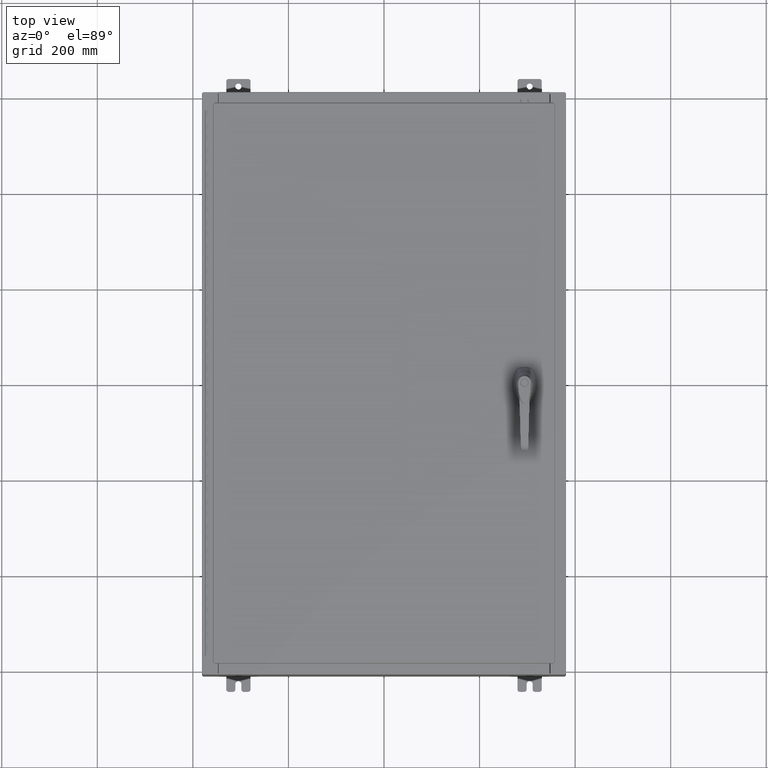
[diagram: clean part render]
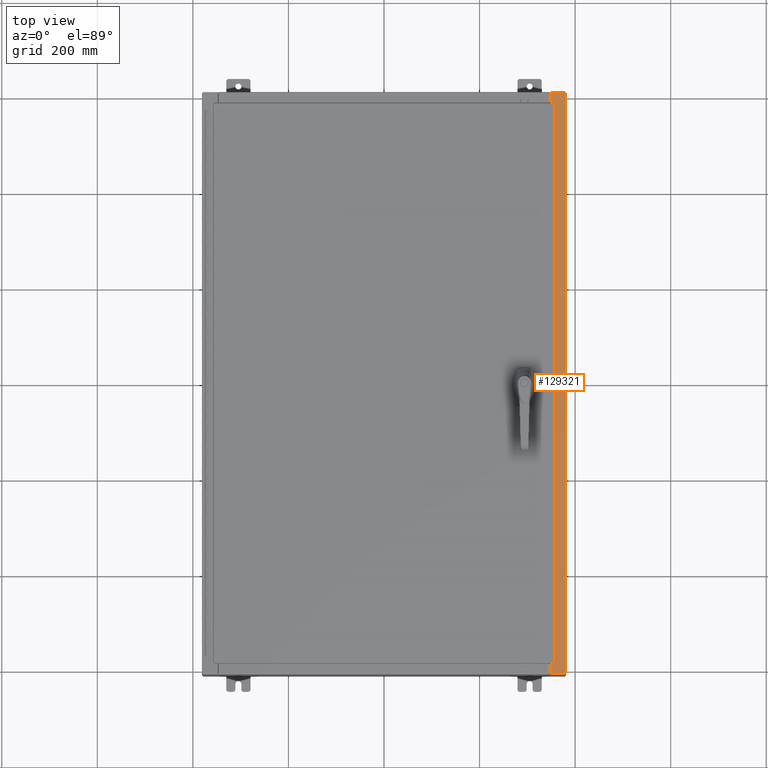
[diagram: same view with one face highlighted and labeled with its STEP entity id]
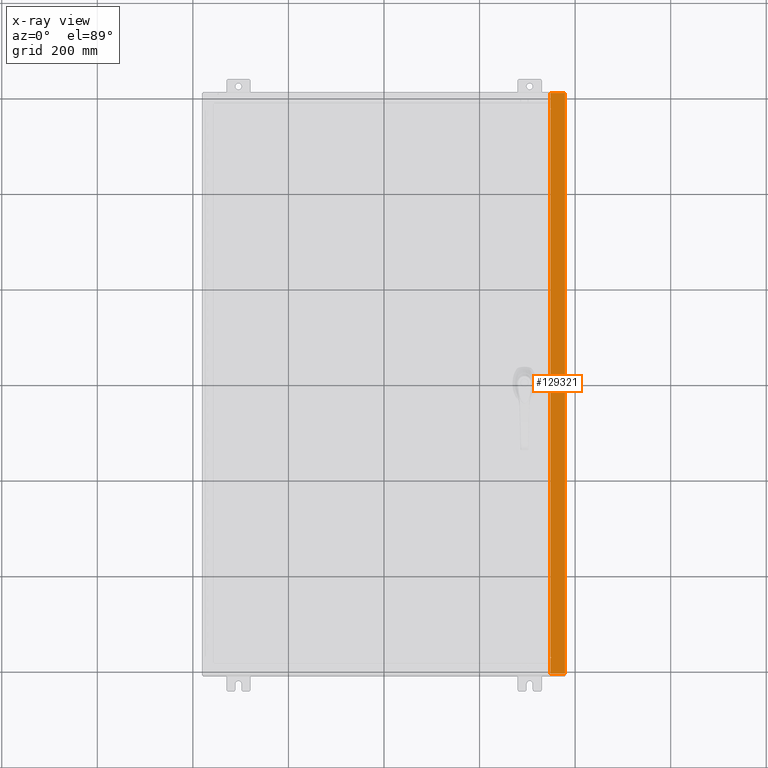
[diagram: x-ray of the same camera — body ghosted, the highlighted face saturated]
A machine part, top view. The second image highlights one B-rep face of the part: STEP entity #129321.
The next image is the same camera in x-ray: the body ghosted, the highlighted face saturated — about 0% of this face is hidden behind the body in this view.
In plain terms, the highlighted planar face has unit normal (-0, 0, -1).
Its self-contained STEP definition (entity closure, byte-faithful):
#602 = VECTOR ( 'NONE', #29961, 39.37007874015748100 ) ;
#3205 = VERTEX_POINT ( 'NONE', #62371 ) ;
#3903 = CARTESIAN_POINT ( 'NONE',  ( 13.69970000000003400, -23.92529999999998200, 9.925300000000008900 ) ) ;
#4327 = DIRECTION ( 'NONE',  ( -1.000000000000000000, 0.0000000000000000000, 0.0000000000000000000 ) ) ;
#6364 = LINE ( 'NONE', #125747, #112496 ) ;
#7592 = VECTOR ( 'NONE', #121141, 39.37007874015748100 ) ;
#12420 = VERTEX_POINT ( 'NONE', #90972 ) ;
#14178 = CARTESIAN_POINT ( 'NONE',  ( 13.75005000000003500, -22.59374999999997900, 9.925300000000008900 ) ) ;
#14941 = DIRECTION ( 'NONE',  ( 5.349571789159788500E-015, 0.0000000000000000000, 1.000000000000000000 ) ) ;
#18238 = VERTEX_POINT ( 'NONE', #102517 ) ;
#19664 = EDGE_CURVE ( 'NONE', #123557, #12420, #93837, .T. ) ;
#22049 = CIRCLE ( 'NONE', #86532, 0.01867499999999949400 ) ;
#27147 = CARTESIAN_POINT ( 'NONE',  ( 13.69970000000003400, 22.63109999999997900, 9.925300000000008900 ) ) ;
#27309 = EDGE_CURVE ( 'NONE', #99720, #18238, #94938, .T. ) ;
#27866 = LINE ( 'NONE', #81189, #602 ) ;
#28695 = CARTESIAN_POINT ( 'NONE',  ( 13.69970000000003400, -22.63109999999997900, 9.925300000000008900 ) ) ;
#29961 = DIRECTION ( 'NONE',  ( -3.203758888773075000E-031, -1.000000000000000000, 1.713873817065035400E-045 ) ) ;
#30421 = CIRCLE ( 'NONE', #104758, 0.01867499999999949400 ) ;
#32546 = CARTESIAN_POINT ( 'NONE',  ( 13.69970000000003400, -22.63109999999997900, 9.925300000000008900 ) ) ;
#34923 = VERTEX_POINT ( 'NONE', #65635 ) ;
#36590 = ORIENTED_EDGE ( 'NONE', *, *, #124923, .F. ) ;
#38585 = PLANE ( 'NONE',  #65596 ) ;
#38807 = CARTESIAN_POINT ( 'NONE',  ( 13.71270000000003700, -22.59374999999997900, 9.925300000000008900 ) ) ;
#40376 = VECTOR ( 'NONE', #66462, 39.37007874015748100 ) ;
#42363 = CARTESIAN_POINT ( 'NONE',  ( 13.71270000000003700, 22.59374999999997900, 9.925300000000008900 ) ) ;
#45837 = EDGE_CURVE ( 'NONE', #99720, #104962, #27866, .T. ) ;
#46636 = VECTOR ( 'NONE', #104489, 39.37007874015748100 ) ;
#48907 = DIRECTION ( 'NONE',  ( -1.000000000000000000, 0.0000000000000000000, 5.349571789159788500E-015 ) ) ;
#49759 = EDGE_CURVE ( 'NONE', #85869, #34923, #30421, .T. ) ;
#49954 = FACE_OUTER_BOUND ( 'NONE', #75545, .T. ) ;
#50435 = LINE ( 'NONE', #14178, #126143 ) ;
#53161 = DIRECTION ( 'NONE',  ( 1.000000000000000000, 0.0000000000000000000, 0.0000000000000000000 ) ) ;
#53702 = EDGE_CURVE ( 'NONE', #132790, #3205, #62110, .T. ) ;
#53708 = DIRECTION ( 'NONE',  ( -1.000000000000000000, 0.0000000000000000000, 0.0000000000000000000 ) ) ;
#56122 = CARTESIAN_POINT ( 'NONE',  ( 14.91230000000003400, -23.92529999999998200, 9.925300000000001800 ) ) ;
#57204 = EDGE_CURVE ( 'NONE', #82409, #132790, #50435, .T. ) ;
#58835 = DIRECTION ( 'NONE',  ( 5.349571789159788500E-015, 0.0000000000000000000, 1.000000000000000000 ) ) ;
#59100 = VECTOR ( 'NONE', #79800, 39.37007874015748100 ) ;
#60897 = VECTOR ( 'NONE', #124748, 39.37007874015748100 ) ;
#62098 = CARTESIAN_POINT ( 'NONE',  ( 13.71270000000003700, -22.59374999999997900, 9.925300000000008900 ) ) ;
#62110 = LINE ( 'NONE', #38807, #7592 ) ;
#62371 = CARTESIAN_POINT ( 'NONE',  ( 13.71270000000003700, 22.59374999999997900, 9.925300000000008900 ) ) ;
#64104 = LINE ( 'NONE', #114385, #60897 ) ;
#65596 = AXIS2_PLACEMENT_3D ( 'NONE', #120468, #110557, #48907 ) ;
#65635 = CARTESIAN_POINT ( 'NONE',  ( 13.75005000000003500, 22.63109999999997900, 9.925300000000008900 ) ) ;
#66462 = DIRECTION ( 'NONE',  ( -0.0000000000000000000, -1.000000000000000000, -0.0000000000000000000 ) ) ;
#70198 = ORIENTED_EDGE ( 'NONE', *, *, #27309, .F. ) ;
#70888 = EDGE_CURVE ( 'NONE', #104962, #93678, #64104, .T. ) ;
#75419 = CARTESIAN_POINT ( 'NONE',  ( 13.75005000000003500, 22.59374999999997900, 9.925300000000008900 ) ) ;
#75545 = EDGE_LOOP ( 'NONE', ( #70198, #117398, #116622, #86424, #107098, #84306, #36590, #101157, #108778, #91450, #94813, #114488 ) ) ;
#76401 = CARTESIAN_POINT ( 'NONE',  ( 13.75005000000003500, 22.61242499999997700, 9.925300000000008900 ) ) ;
#79800 = DIRECTION ( 'NONE',  ( -3.203758888773075000E-031, -1.000000000000000000, 1.713873817065035400E-045 ) ) ;
#81189 = CARTESIAN_POINT ( 'NONE',  ( 13.69970000000003400, -4.389053564852444200E-030, 9.925300000000008900 ) ) ;
#82409 = VERTEX_POINT ( 'NONE', #120240 ) ;
#84306 = ORIENTED_EDGE ( 'NONE', *, *, #101431, .T. ) ;
#85324 = DIRECTION ( 'NONE',  ( -1.000000000000000000, 0.0000000000000000000, 5.349571789159789300E-015 ) ) ;
#85869 = VERTEX_POINT ( 'NONE', #75419 ) ;
#86424 = ORIENTED_EDGE ( 'NONE', *, *, #115394, .F. ) ;
#86532 = AXIS2_PLACEMENT_3D ( 'NONE', #120547, #58835, #130908 ) ;
#86803 = DIRECTION ( 'NONE',  ( 1.000000000000000000, 0.0000000000000000000, 0.0000000000000000000 ) ) ;
#90605 = VECTOR ( 'NONE', #85324, 39.37007874015748100 ) ;
#90972 = CARTESIAN_POINT ( 'NONE',  ( 13.69970000000003400, 23.92529999999998900, 9.925300000000008900 ) ) ;
#91450 = ORIENTED_EDGE ( 'NONE', *, *, #53702, .F. ) ;
#93678 = VERTEX_POINT ( 'NONE', #97190 ) ;
#93837 = LINE ( 'NONE', #126303, #90605 ) ;
#94813 = ORIENTED_EDGE ( 'NONE', *, *, #57204, .F. ) ;
#94938 = LINE ( 'NONE', #32546, #46636 ) ;
#97190 = CARTESIAN_POINT ( 'NONE',  ( 14.91230000000003400, -23.92529999999998600, 9.925300000000001800 ) ) ;
#99720 = VERTEX_POINT ( 'NONE', #28695 ) ;
#101157 = ORIENTED_EDGE ( 'NONE', *, *, #49759, .F. ) ;
#101431 = EDGE_CURVE ( 'NONE', #12420, #119557, #113927, .T. ) ;
#102517 = CARTESIAN_POINT ( 'NONE',  ( 13.75005000000003500, -22.63109999999997900, 9.925300000000008900 ) ) ;
#102790 = VECTOR ( 'NONE', #53161, 39.37007874015748100 ) ;
#104489 = DIRECTION ( 'NONE',  ( 1.000000000000000000, 0.0000000000000000000, 0.0000000000000000000 ) ) ;
#104758 = AXIS2_PLACEMENT_3D ( 'NONE', #76401, #14941, #86803 ) ;
#104962 = VERTEX_POINT ( 'NONE', #3903 ) ;
#106022 = LINE ( 'NONE', #42363, #102790 ) ;
#107098 = ORIENTED_EDGE ( 'NONE', *, *, #19664, .T. ) ;
#108778 = ORIENTED_EDGE ( 'NONE', *, *, #125092, .F. ) ;
#110557 = DIRECTION ( 'NONE',  ( -5.349571789159788500E-015, 0.0000000000000000000, -1.000000000000000000 ) ) ;
#110894 = CARTESIAN_POINT ( 'NONE',  ( 13.69970000000003400, -4.389053564852444200E-030, 9.925300000000008900 ) ) ;
#112496 = VECTOR ( 'NONE', #53708, 39.37007874015748100 ) ;
#113927 = LINE ( 'NONE', #110894, #59100 ) ;
#114385 = CARTESIAN_POINT ( 'NONE',  ( -3.196982141649654200E-014, -23.92529999999993300, 9.925300000000083500 ) ) ;
#114488 = ORIENTED_EDGE ( 'NONE', *, *, #118879, .F. ) ;
#115394 = EDGE_CURVE ( 'NONE', #123557, #93678, #122512, .T. ) ;
#116622 = ORIENTED_EDGE ( 'NONE', *, *, #70888, .T. ) ;
#117398 = ORIENTED_EDGE ( 'NONE', *, *, #45837, .T. ) ;
#118879 = EDGE_CURVE ( 'NONE', #18238, #82409, #22049, .T. ) ;
#119557 = VERTEX_POINT ( 'NONE', #27147 ) ;
#120240 = CARTESIAN_POINT ( 'NONE',  ( 13.75005000000003500, -22.59374999999997900, 9.925300000000008900 ) ) ;
#120468 = CARTESIAN_POINT ( 'NONE',  ( 5.335691853495967900E-014, 0.0000000000000000000, 9.925300000000083500 ) ) ;
#120547 = CARTESIAN_POINT ( 'NONE',  ( 13.75005000000003500, -22.61242499999997700, 9.925300000000008900 ) ) ;
#121141 = DIRECTION ( 'NONE',  ( -0.0000000000000000000, 1.000000000000000000, -0.0000000000000000000 ) ) ;
#122512 = LINE ( 'NONE', #56122, #40376 ) ;
#123557 = VERTEX_POINT ( 'NONE', #127771 ) ;
#124748 = DIRECTION ( 'NONE',  ( 1.000000000000000000, -3.566381192773192400E-015, -5.349571789159789300E-015 ) ) ;
#124923 = EDGE_CURVE ( 'NONE', #34923, #119557, #6364, .T. ) ;
#125092 = EDGE_CURVE ( 'NONE', #3205, #85869, #106022, .T. ) ;
#125747 = CARTESIAN_POINT ( 'NONE',  ( 13.75005000000003500, 22.63109999999997900, 9.925300000000008900 ) ) ;
#126143 = VECTOR ( 'NONE', #4327, 39.37007874015748100 ) ;
#126303 = CARTESIAN_POINT ( 'NONE',  ( 5.335691853495967900E-014, 23.92529999999998900, 9.925300000000083500 ) ) ;
#127771 = CARTESIAN_POINT ( 'NONE',  ( 14.91230000000003400, 23.92529999999998600, 9.925300000000001800 ) ) ;
#129321 = ADVANCED_FACE ( 'NONE', ( #49954 ), #38585, .F. ) ;
#130908 = DIRECTION ( 'NONE',  ( 1.000000000000000000, 0.0000000000000000000, 0.0000000000000000000 ) ) ;
#132790 = VERTEX_POINT ( 'NONE', #62098 ) ;